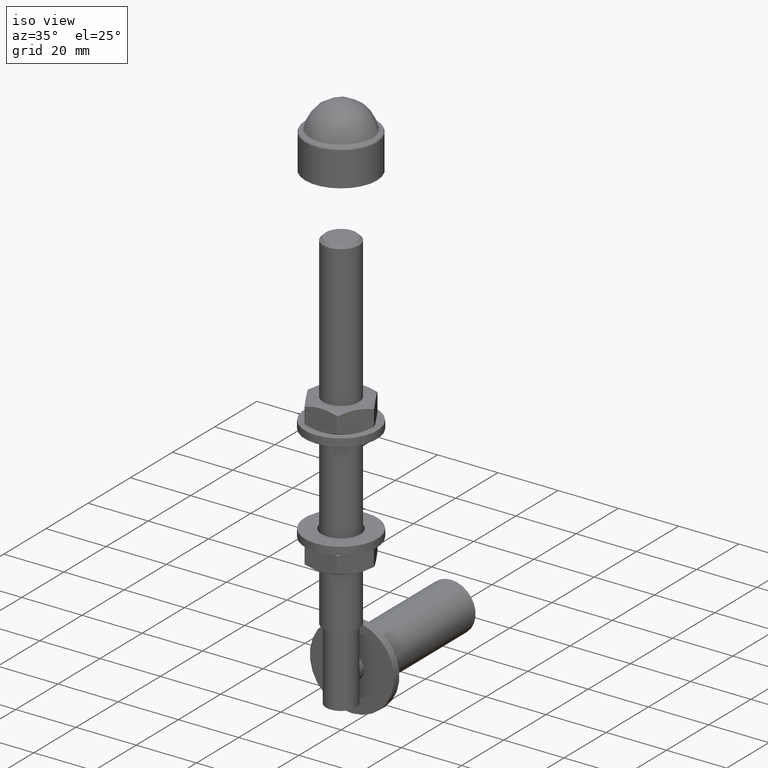
[diagram: clean part render]
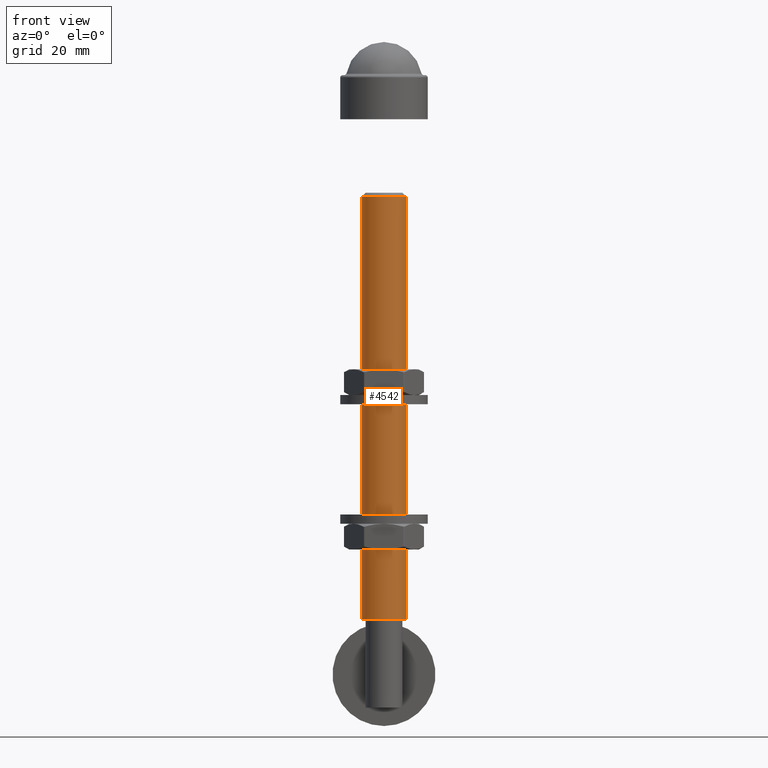
[diagram: tour spotlight — one face highlighted and labeled with its STEP entity id]
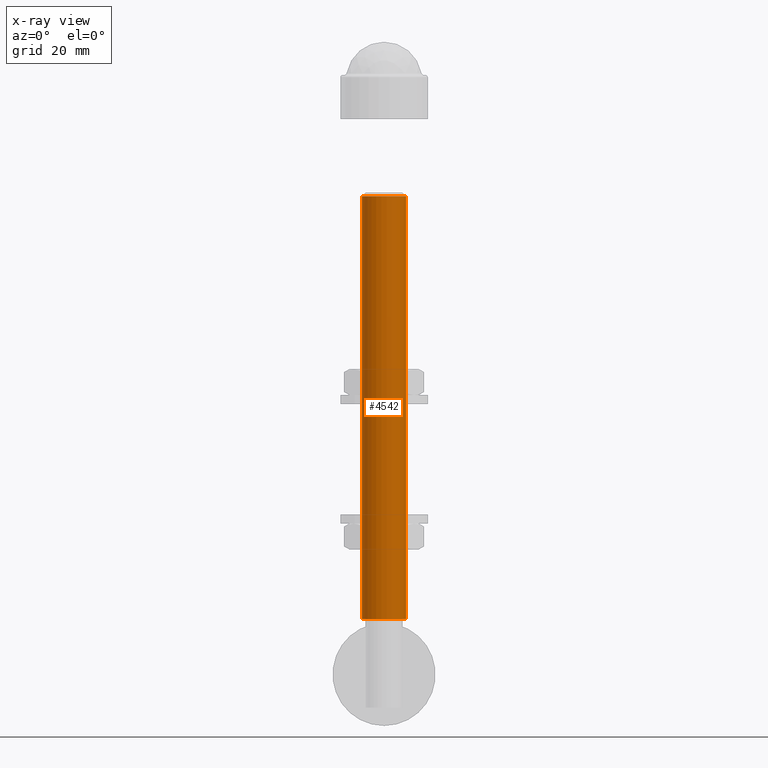
[diagram: x-ray of the same camera — body ghosted, this tour face saturated]
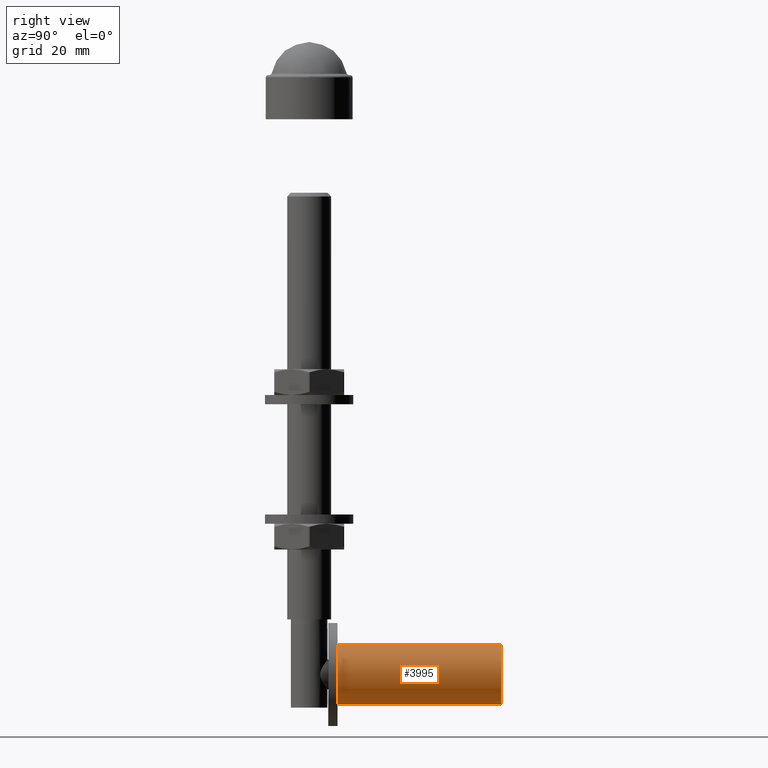
[diagram: tour spotlight — one face highlighted and labeled with its STEP entity id]
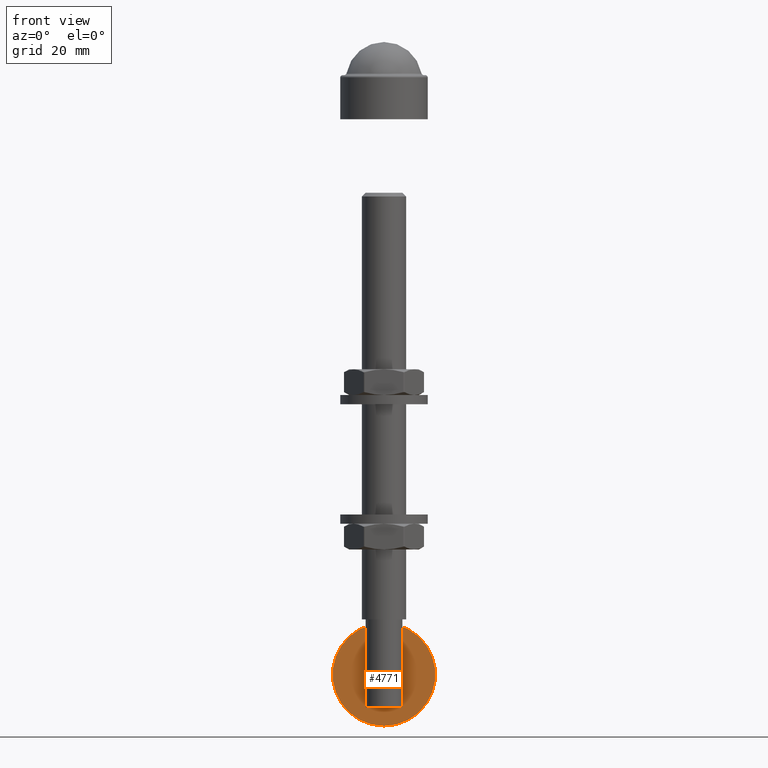
[diagram: tour spotlight — one face highlighted and labeled with its STEP entity id]
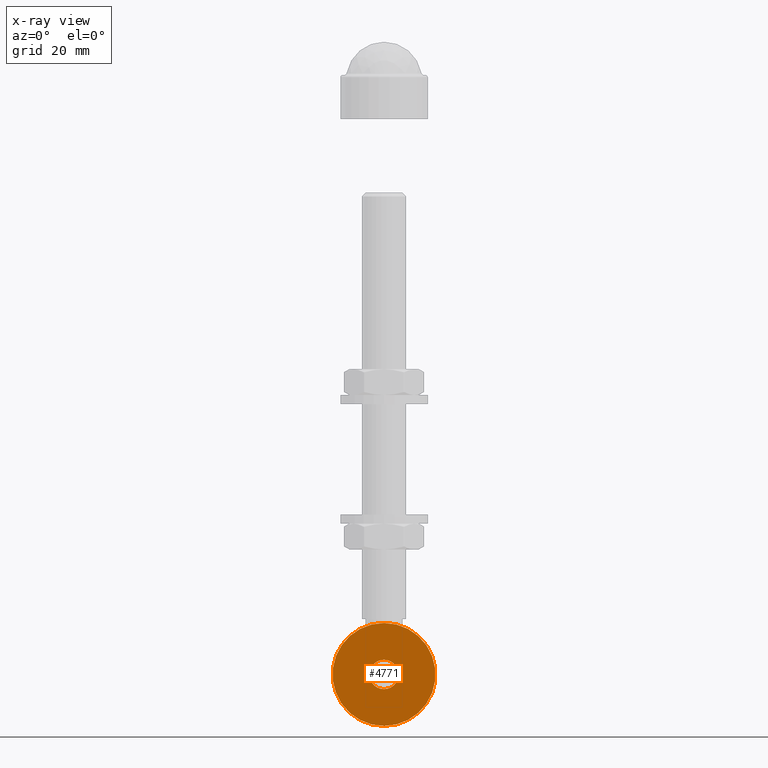
[diagram: x-ray of the same camera — body ghosted, this tour face saturated]
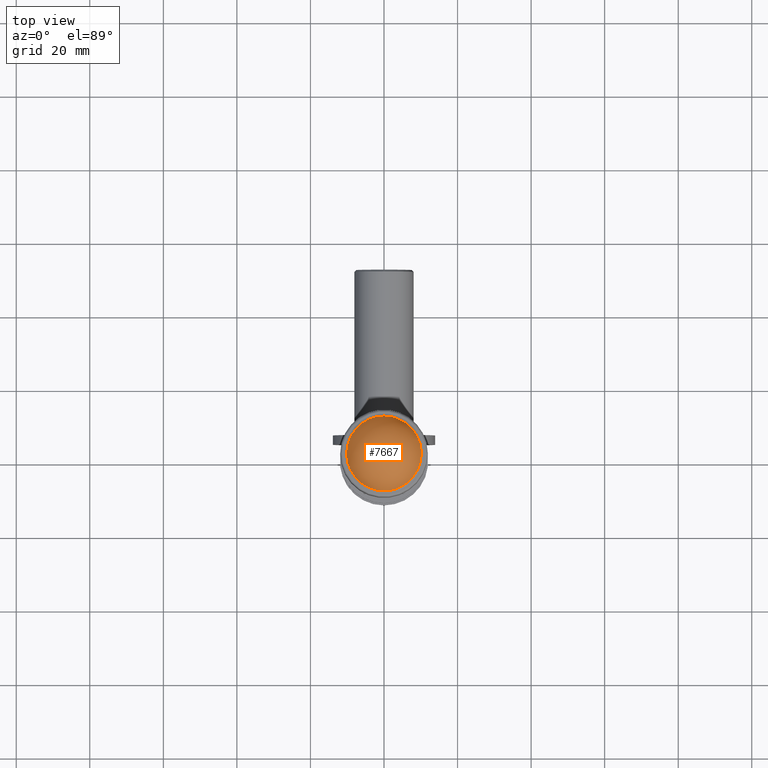
[diagram: tour spotlight — one face highlighted and labeled with its STEP entity id]
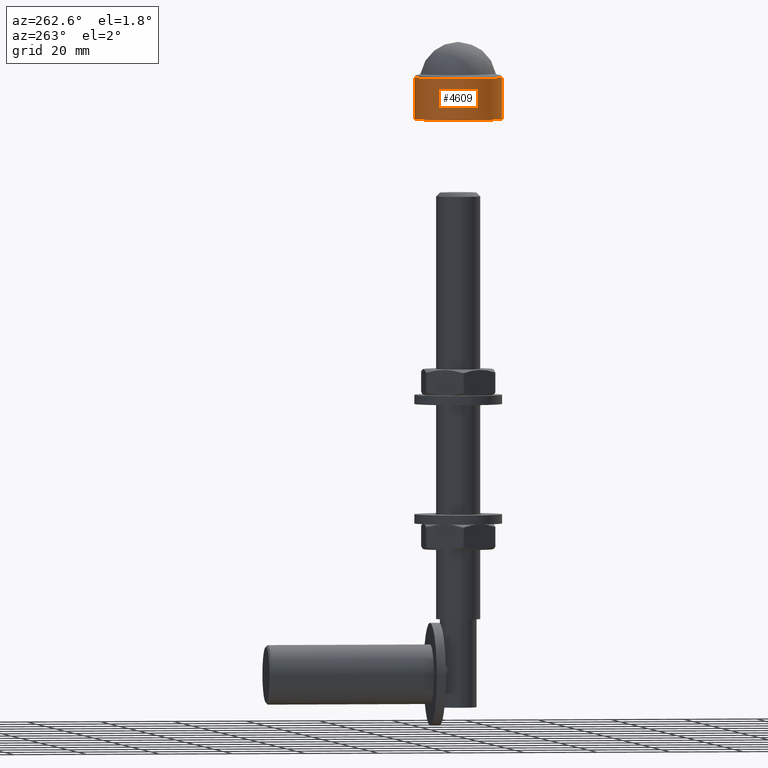
[diagram: tour spotlight — one face highlighted and labeled with its STEP entity id]
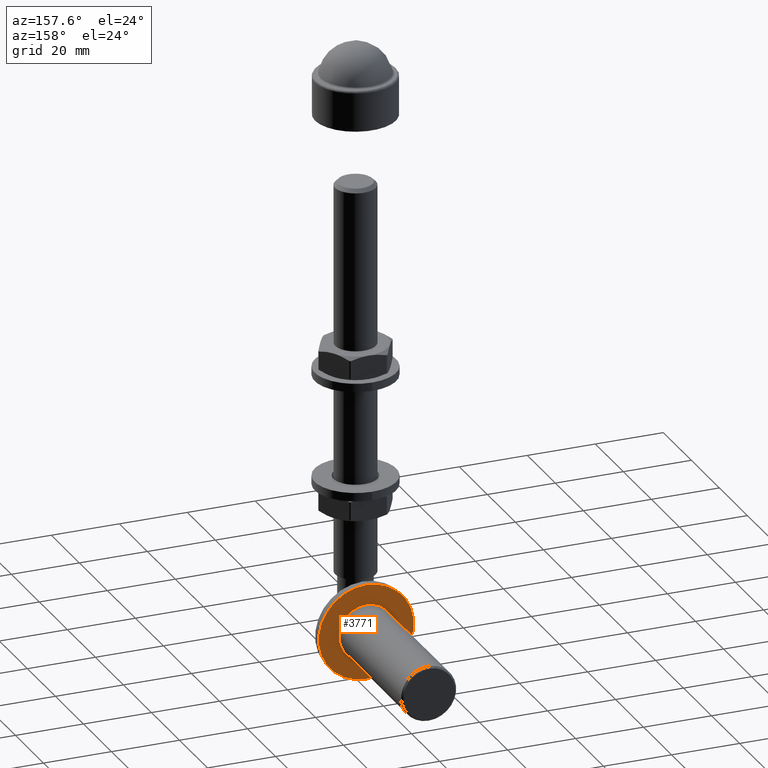
[diagram: tour spotlight — one face highlighted and labeled with its STEP entity id]
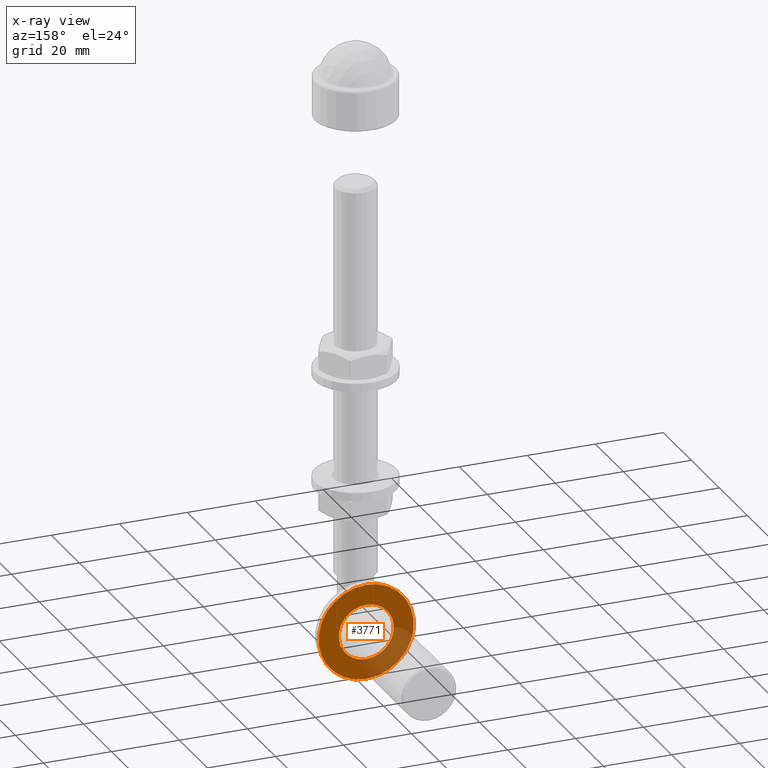
[diagram: x-ray of the same camera — body ghosted, this tour face saturated]
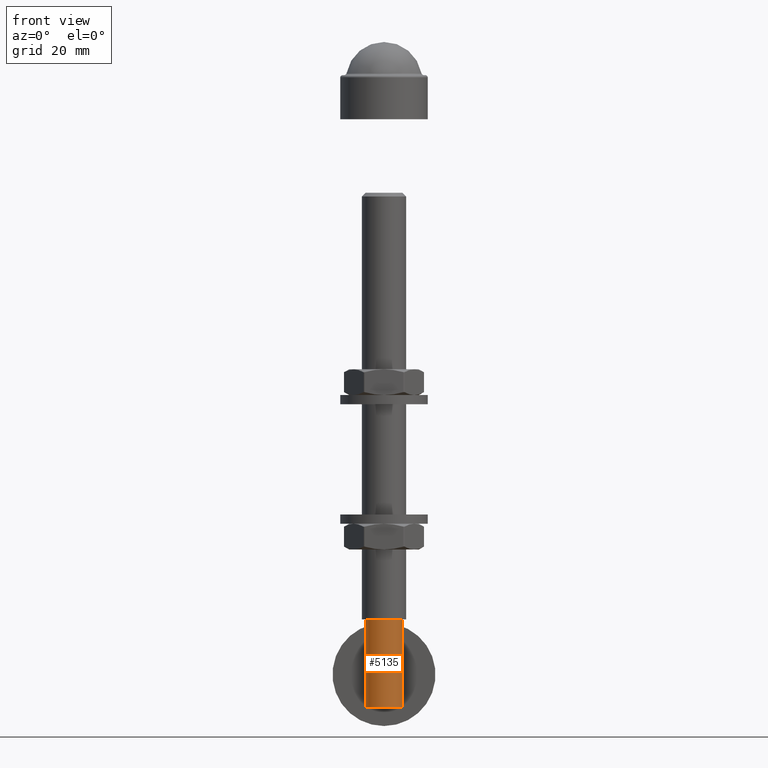
[diagram: tour spotlight — one face highlighted and labeled with its STEP entity id]
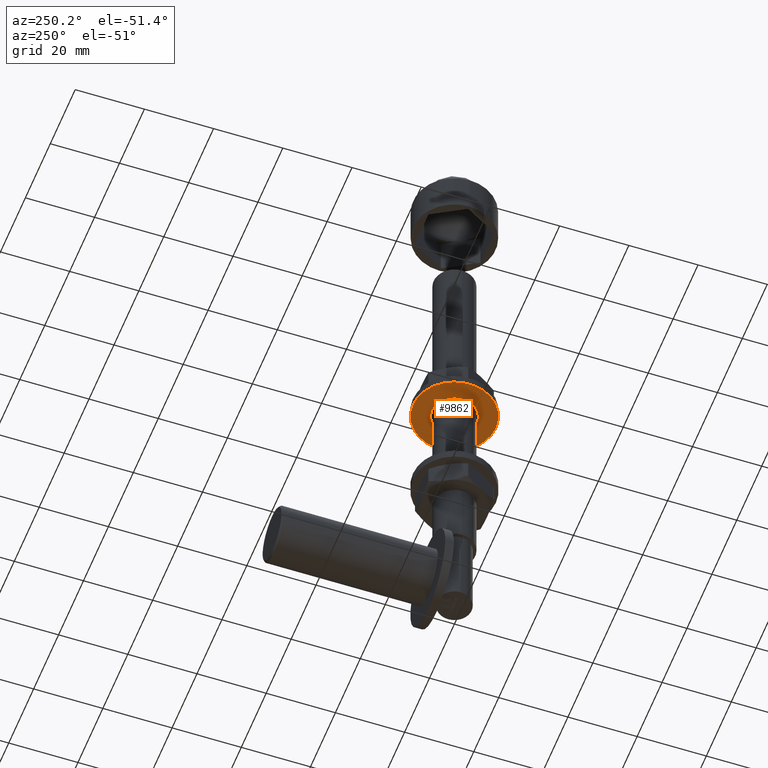
[diagram: tour spotlight — one face highlighted and labeled with its STEP entity id]
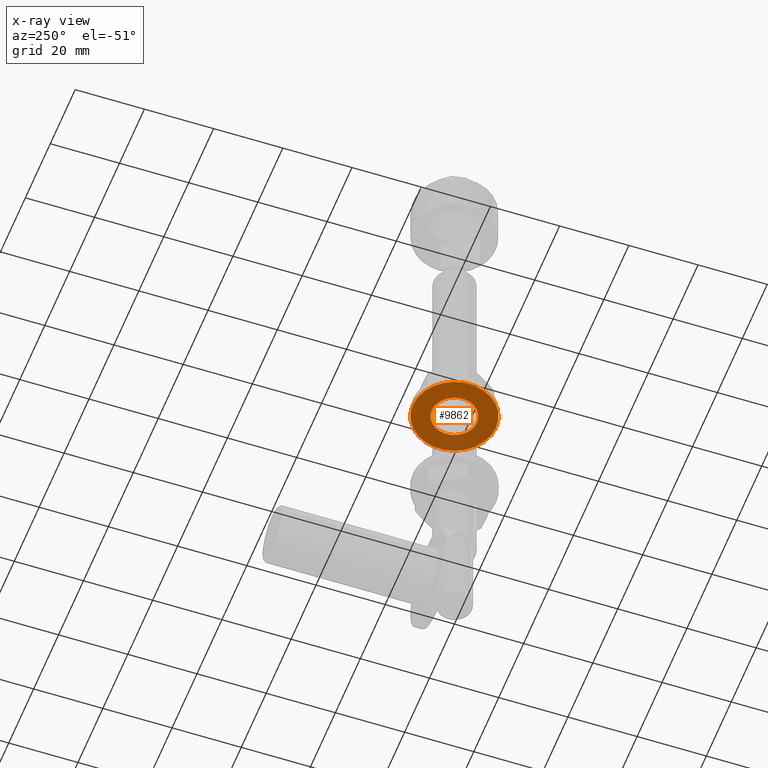
[diagram: x-ray of the same camera — body ghosted, this tour face saturated]
A machine part: a face-by-face anatomy tour. The part has 354 B-rep faces; the first image is the clean iso view, then the 8 largest visible faces are spotlighted one at a time (largest first), each with its STEP entity span.

Face 1 — front view, entity #4542. An x-ray twin of the same camera follows (body ghosted, this face saturated) — the face is partly hidden behind the body. In plain terms, the highlighted cylindrical surface (bore or boss wall) has radius 6 mm, axis along (-0, -0, -1).
Definition (entity closure, byte-faithful):
#1549 = AXIS2_PLACEMENT_3D ( 'NONE', #7938, #2211, #13761 ) ;
#1902 = EDGE_LOOP ( 'NONE', ( #14410 ) ) ;
#2211 = DIRECTION ( 'NONE',  ( -0.000000000000000000, -0.000000000000000000, -1.000000000000000000 ) ) ;
#2575 = EDGE_CURVE ( 'NONE', #7190, #7190, #9462, .T. ) ;
#2710 = DIRECTION ( 'NONE',  ( -1.000000000000000000, 0.000000000000000000, 0.000000000000000000 ) ) ;
#3904 = CARTESIAN_POINT ( 'NONE',  ( 0.000000000000000000, -1.836970198721030062E-14, -70.00000000000000000 ) ) ;
#4122 = AXIS2_PLACEMENT_3D ( 'NONE', #14816, #7911, #14862 ) ;
#4330 = FACE_OUTER_BOUND ( 'NONE', #9397, .T. ) ;
#4542 = ADVANCED_FACE ( 'NONE', ( #4330, #12133 ), #7788, .T. ) ;
#6218 = DIRECTION ( 'NONE',  ( -0.000000000000000000, -0.000000000000000000, -1.000000000000000000 ) ) ;
#7190 = VERTEX_POINT ( 'NONE', #13838 ) ;
#7788 = CYLINDRICAL_SURFACE ( 'NONE', #8827, 6.000000000000000000 ) ;
#7888 = ORIENTED_EDGE ( 'NONE', *, *, #12169, .T. ) ;
#7911 = DIRECTION ( 'NONE',  ( -0.000000000000000000, -0.000000000000000000, -1.000000000000000000 ) ) ;
#7938 = CARTESIAN_POINT ( 'NONE',  ( 0.000000000000000000, -1.836970198721030062E-14, -46.00000000000001421 ) ) ;
#8827 = AXIS2_PLACEMENT_3D ( 'NONE', #3904, #6218, #2710 ) ;
#9397 = EDGE_LOOP ( 'NONE', ( #7888 ) ) ;
#9462 = CIRCLE ( 'NONE', #1549, 6.000000000000000000 ) ;
#11513 = CARTESIAN_POINT ( 'NONE',  ( 6.000000000000000000, -1.836970198721030062E-14, 69.00000000000000000 ) ) ;
#11967 = CIRCLE ( 'NONE', #4122, 6.000000000000000000 ) ;
#12133 = FACE_OUTER_BOUND ( 'NONE', #1902, .T. ) ;
#12169 = EDGE_CURVE ( 'NONE', #14138, #14138, #11967, .T. ) ;
#13761 = DIRECTION ( 'NONE',  ( -1.000000000000000000, 0.000000000000000000, 0.000000000000000000 ) ) ;
#13838 = CARTESIAN_POINT ( 'NONE',  ( -6.000000000000000000, -1.836970198721030062E-14, -46.00000000000001421 ) ) ;
#14138 = VERTEX_POINT ( 'NONE', #11513 ) ;
#14410 = ORIENTED_EDGE ( 'NONE', *, *, #2575, .F. ) ;
#14816 = CARTESIAN_POINT ( 'NONE',  ( 0.000000000000000000, -1.836970198721030062E-14, 69.00000000000000000 ) ) ;
#14862 = DIRECTION ( 'NONE',  ( 1.000000000000000000, 0.000000000000000000, 0.000000000000000000 ) ) ;

Face 2 — right view, entity #3995. In plain terms, the highlighted cylindrical surface (bore or boss wall) has radius 8.1 mm, axis along (-0, -1, -0).
Definition (entity closure, byte-faithful):
#81 = ORIENTED_EDGE ( 'NONE', *, *, #8151, .F. ) ;
#1013 = EDGE_LOOP ( 'NONE', ( #13722 ) ) ;
#1239 = DIRECTION ( 'NONE',  ( 0.000000000000000000, 0.000000000000000000, 1.000000000000000000 ) ) ;
#1868 = AXIS2_PLACEMENT_3D ( 'NONE', #10578, #12774, #6006 ) ;
#2186 = DIRECTION ( 'NONE',  ( 0.000000000000000000, 0.000000000000000000, -1.000000000000000000 ) ) ;
#3320 = CARTESIAN_POINT ( 'NONE',  ( 0.000000000000000000, 7.699999999999983302, -69.10000000000002274 ) ) ;
#3995 = ADVANCED_FACE ( 'NONE', ( #5620, #13265 ), #4878, .T. ) ;
#4160 = AXIS2_PLACEMENT_3D ( 'NONE', #8248, #8364, #1239 ) ;
#4878 = CYLINDRICAL_SURFACE ( 'NONE', #14397, 8.100000000000010303 ) ;
#5620 = FACE_OUTER_BOUND ( 'NONE', #1013, .T. ) ;
#6006 = DIRECTION ( 'NONE',  ( 0.000000000000000000, 0.000000000000000000, -1.000000000000000000 ) ) ;
#6820 = DIRECTION ( 'NONE',  ( -0.000000000000000000, -1.000000000000000000, -0.000000000000000000 ) ) ;
#7443 = CIRCLE ( 'NONE', #4160, 8.100000000000003197 ) ;
#8151 = EDGE_CURVE ( 'NONE', #10482, #10482, #10749, .T. ) ;
#8248 = CARTESIAN_POINT ( 'NONE',  ( 0.000000000000000000, 52.19999999999998863, -61.00000000000001421 ) ) ;
#8364 = DIRECTION ( 'NONE',  ( -0.000000000000000000, -1.000000000000000000, -0.000000000000000000 ) ) ;
#10304 = VERTEX_POINT ( 'NONE', #11660 ) ;
#10482 = VERTEX_POINT ( 'NONE', #3320 ) ;
#10578 = CARTESIAN_POINT ( 'NONE',  ( 0.000000000000000000, 7.699999999999983302, -61.00000000000001421 ) ) ;
#10749 = CIRCLE ( 'NONE', #1868, 8.100000000000010303 ) ;
#11090 = EDGE_CURVE ( 'NONE', #10304, #10304, #7443, .T. ) ;
#11205 = EDGE_LOOP ( 'NONE', ( #81 ) ) ;
#11371 = CARTESIAN_POINT ( 'NONE',  ( 0.000000000000000000, 0.000000000000000000, -61.00000000000001421 ) ) ;
#11660 = CARTESIAN_POINT ( 'NONE',  ( 0.000000000000000000, 52.19999999999998863, -52.90000000000001279 ) ) ;
#12774 = DIRECTION ( 'NONE',  ( -0.000000000000000000, -1.000000000000000000, -0.000000000000000000 ) ) ;
#13265 = FACE_OUTER_BOUND ( 'NONE', #11205, .T. ) ;
#13722 = ORIENTED_EDGE ( 'NONE', *, *, #11090, .T. ) ;
#14397 = AXIS2_PLACEMENT_3D ( 'NONE', #11371, #6820, #2186 ) ;

Face 3 — front view, entity #4771. An x-ray twin of the same camera follows (body ghosted, this face saturated) — the face is partly hidden behind the body. In plain terms, the highlighted planar face has unit normal (0, -1, 0).
Definition (entity closure, byte-faithful):
#40 = CARTESIAN_POINT ( 'NONE',  ( 0.000000000000000000, 5.199999999999980638, -61.00000000000001421 ) ) ;
#68 = DIRECTION ( 'NONE',  ( -0.000000000000000000, -1.000000000000000000, -0.000000000000000000 ) ) ;
#1843 = EDGE_LOOP ( 'NONE', ( #9197 ) ) ;
#1933 = FACE_OUTER_BOUND ( 'NONE', #1843, .T. ) ;
#3627 = DIRECTION ( 'NONE',  ( -0.000000000000000000, -1.000000000000000000, -0.000000000000000000 ) ) ;
#3649 = EDGE_CURVE ( 'NONE', #12654, #12654, #6752, .T. ) ;
#3902 = PLANE ( 'NONE',  #6268 ) ;
#4771 = ADVANCED_FACE ( 'NONE', ( #1933, #13996 ), #3902, .T. ) ;
#4936 = DIRECTION ( 'NONE',  ( 0.000000000000000000, 0.000000000000000000, -1.000000000000000000 ) ) ;
#4992 = AXIS2_PLACEMENT_3D ( 'NONE', #11741, #68, #9515 ) ;
#6019 = CARTESIAN_POINT ( 'NONE',  ( 0.000000000000000000, 5.199999999999981526, -75.00000000000001421 ) ) ;
#6268 = AXIS2_PLACEMENT_3D ( 'NONE', #6019, #13028, #4936 ) ;
#6752 = CIRCLE ( 'NONE', #4992, 13.99999999999999822 ) ;
#9197 = ORIENTED_EDGE ( 'NONE', *, *, #3649, .T. ) ;
#9218 = CIRCLE ( 'NONE', #14085, 4.000000000000003553 ) ;
#9515 = DIRECTION ( 'NONE',  ( 0.000000000000000000, 0.000000000000000000, -1.000000000000000000 ) ) ;
#10825 = VERTEX_POINT ( 'NONE', #12986 ) ;
#11470 = CARTESIAN_POINT ( 'NONE',  ( 0.000000000000000000, 5.199999999999982414, -75.00000000000001421 ) ) ;
#11741 = CARTESIAN_POINT ( 'NONE',  ( 0.000000000000000000, 5.199999999999982414, -61.00000000000001421 ) ) ;
#11766 = DIRECTION ( 'NONE',  ( 0.000000000000000000, 0.000000000000000000, -1.000000000000000000 ) ) ;
#12654 = VERTEX_POINT ( 'NONE', #11470 ) ;
#12986 = CARTESIAN_POINT ( 'NONE',  ( 0.000000000000000000, 5.199999999999980638, -65.00000000000001421 ) ) ;
#13028 = DIRECTION ( 'NONE',  ( 0.000000000000000000, -1.000000000000000000, -0.000000000000000000 ) ) ;
#13063 = ORIENTED_EDGE ( 'NONE', *, *, #13076, .F. ) ;
#13076 = EDGE_CURVE ( 'NONE', #10825, #10825, #9218, .T. ) ;
#13996 = FACE_BOUND ( 'NONE', #14945, .T. ) ;
#14085 = AXIS2_PLACEMENT_3D ( 'NONE', #40, #3627, #11766 ) ;
#14945 = EDGE_LOOP ( 'NONE', ( #13063 ) ) ;

Face 4 — top view, entity #7667. In plain terms, the highlighted spherical surface has radius 10.3368 mm.
Definition (entity closure, byte-faithful):
#662 = CARTESIAN_POINT ( 'NONE',  ( -2.731067483295574030E-24, 12.57081734096772152, 0.000000000000000000 ) ) ;
#954 = FACE_OUTER_BOUND ( 'NONE', #13425, .T. ) ;
#4149 = ORIENTED_EDGE ( 'NONE', *, *, #8446, .T. ) ;
#4508 = DIRECTION ( 'NONE',  ( -1.000000000000000000, 0.000000000000000000, 0.000000000000000000 ) ) ;
#5186 = VERTEX_POINT ( 'NONE', #15154 ) ;
#6296 = DIRECTION ( 'NONE',  ( -1.444893032729974187E-24, 1.000000000000000000, -0.000000000000000000 ) ) ;
#6660 = CARTESIAN_POINT ( 'NONE',  ( 2.524354896707237777E-26, 10.66319444444444997, 0.000000000000000000 ) ) ;
#7667 = ADVANCED_FACE ( 'NONE', ( #954 ), #13005, .T. ) ;
#8446 = EDGE_CURVE ( 'NONE', #5186, #5186, #10404, .T. ) ;
#8858 = DIRECTION ( 'NONE',  ( 1.000000000000000000, 0.000000000000000000, 0.000000000000000000 ) ) ;
#10312 = DIRECTION ( 'NONE',  ( 0.000000000000000000, 0.000000000000000000, 1.000000000000000000 ) ) ;
#10404 = CIRCLE ( 'NONE', #14922, 10.15925804269309474 ) ;
#13005 = SPHERICAL_SURFACE ( 'NONE', #14226, 10.33680555555555358 ) ;
#13425 = EDGE_LOOP ( 'NONE', ( #4149 ) ) ;
#14226 = AXIS2_PLACEMENT_3D ( 'NONE', #6660, #10312, #4508 ) ;
#14922 = AXIS2_PLACEMENT_3D ( 'NONE', #662, #6296, #8858 ) ;
#15154 = CARTESIAN_POINT ( 'NONE',  ( 10.15925804269309474, 12.57081734096772152, 0.000000000000000000 ) ) ;

Face 5 — auxiliary view, entity #4609. In plain terms, the highlighted cylindrical surface (bore or boss wall) has radius 11.9 mm, axis along (-0, -0, 1).
Definition (entity closure, byte-faithful):
#1459 = EDGE_CURVE ( 'NONE', #10321, #10321, #12729, .T. ) ;
#2837 = CIRCLE ( 'NONE', #3070, 11.90000000000000036 ) ;
#3070 = AXIS2_PLACEMENT_3D ( 'NONE', #14161, #7161, #8404 ) ;
#3361 = CARTESIAN_POINT ( 'NONE',  ( -11.90000000000000036, -1.719422708948669389E-23, 0.000000000000000000 ) ) ;
#3370 = ORIENTED_EDGE ( 'NONE', *, *, #1459, .T. ) ;
#3407 = FACE_OUTER_BOUND ( 'NONE', #3998, .T. ) ;
#3998 = EDGE_LOOP ( 'NONE', ( #10662 ) ) ;
#4132 = DIRECTION ( 'NONE',  ( 1.000000000000000000, 0.000000000000000000, 0.000000000000000000 ) ) ;
#4609 = ADVANCED_FACE ( 'NONE', ( #9249, #3407 ), #10513, .T. ) ;
#5525 = EDGE_LOOP ( 'NONE', ( #3370 ) ) ;
#7161 = DIRECTION ( 'NONE',  ( -1.444893032729974187E-24, 1.000000000000000000, -0.000000000000000000 ) ) ;
#8108 = CARTESIAN_POINT ( 'NONE',  ( 11.90000000000000036, 11.30000000000000071, 0.000000000000000000 ) ) ;
#8404 = DIRECTION ( 'NONE',  ( -1.000000000000000000, -1.444893032729974187E-24, 0.000000000000000000 ) ) ;
#8732 = DIRECTION ( 'NONE',  ( 1.444893032729974187E-24, -1.000000000000000000, 0.000000000000000000 ) ) ;
#9249 = FACE_OUTER_BOUND ( 'NONE', #5525, .T. ) ;
#9830 = CARTESIAN_POINT ( 'NONE',  ( -1.632729126984870402E-23, 11.30000000000000071, 0.000000000000000000 ) ) ;
#9873 = AXIS2_PLACEMENT_3D ( 'NONE', #10033, #14627, #11240 ) ;
#10033 = CARTESIAN_POINT ( 'NONE',  ( -3.034275368732945463E-23, 21.00000000000000000, 0.000000000000000000 ) ) ;
#10132 = VERTEX_POINT ( 'NONE', #3361 ) ;
#10226 = AXIS2_PLACEMENT_3D ( 'NONE', #9830, #8732, #4132 ) ;
#10315 = EDGE_CURVE ( 'NONE', #10132, #10132, #2837, .T. ) ;
#10321 = VERTEX_POINT ( 'NONE', #8108 ) ;
#10513 = CYLINDRICAL_SURFACE ( 'NONE', #9873, 11.90000000000000036 ) ;
#10662 = ORIENTED_EDGE ( 'NONE', *, *, #10315, .T. ) ;
#11240 = DIRECTION ( 'NONE',  ( -1.000000000000000000, 0.000000000000000000, 0.000000000000000000 ) ) ;
#12729 = CIRCLE ( 'NONE', #10226, 11.90000000000000036 ) ;
#14161 = CARTESIAN_POINT ( 'NONE',  ( 5.739718509874450723E-39, 0.000000000000000000, 0.000000000000000000 ) ) ;
#14627 = DIRECTION ( 'NONE',  ( -1.444893032729974187E-24, 1.000000000000000000, -0.000000000000000000 ) ) ;

Face 6 — auxiliary view, entity #3771. An x-ray twin of the same camera follows (body ghosted, this face saturated) — the face is partly hidden behind the body. In plain terms, the highlighted planar face has unit normal (0, 1, 0).
Definition (entity closure, byte-faithful):
#792 = VERTEX_POINT ( 'NONE', #3466 ) ;
#1176 = DIRECTION ( 'NONE',  ( 0.000000000000000000, 0.000000000000000000, -1.000000000000000000 ) ) ;
#1189 = ORIENTED_EDGE ( 'NONE', *, *, #8151, .T. ) ;
#1868 = AXIS2_PLACEMENT_3D ( 'NONE', #10578, #12774, #6006 ) ;
#2311 = DIRECTION ( 'NONE',  ( -0.000000000000000000, -1.000000000000000000, -0.000000000000000000 ) ) ;
#3247 = FACE_BOUND ( 'NONE', #12547, .T. ) ;
#3320 = CARTESIAN_POINT ( 'NONE',  ( 0.000000000000000000, 7.699999999999983302, -69.10000000000002274 ) ) ;
#3466 = CARTESIAN_POINT ( 'NONE',  ( 0.000000000000000000, 7.699999999999983302, -75.00000000000001421 ) ) ;
#3771 = ADVANCED_FACE ( 'NONE', ( #3247, #8918 ), #10740, .T. ) ;
#3818 = CARTESIAN_POINT ( 'NONE',  ( 0.000000000000000000, 7.699999999999983302, -69.10000000000002274 ) ) ;
#4034 = AXIS2_PLACEMENT_3D ( 'NONE', #9312, #2311, #1176 ) ;
#5231 = ORIENTED_EDGE ( 'NONE', *, *, #6906, .F. ) ;
#6006 = DIRECTION ( 'NONE',  ( 0.000000000000000000, 0.000000000000000000, -1.000000000000000000 ) ) ;
#6906 = EDGE_CURVE ( 'NONE', #792, #792, #13766, .T. ) ;
#8151 = EDGE_CURVE ( 'NONE', #10482, #10482, #10749, .T. ) ;
#8918 = FACE_OUTER_BOUND ( 'NONE', #12574, .T. ) ;
#9312 = CARTESIAN_POINT ( 'NONE',  ( 0.000000000000000000, 7.699999999999983302, -61.00000000000001421 ) ) ;
#10482 = VERTEX_POINT ( 'NONE', #3320 ) ;
#10578 = CARTESIAN_POINT ( 'NONE',  ( 0.000000000000000000, 7.699999999999983302, -61.00000000000001421 ) ) ;
#10740 = PLANE ( 'NONE',  #13398 ) ;
#10749 = CIRCLE ( 'NONE', #1868, 8.100000000000010303 ) ;
#10821 = DIRECTION ( 'NONE',  ( 0.000000000000000000, -0.000000000000000000, 1.000000000000000000 ) ) ;
#12547 = EDGE_LOOP ( 'NONE', ( #1189 ) ) ;
#12574 = EDGE_LOOP ( 'NONE', ( #5231 ) ) ;
#12774 = DIRECTION ( 'NONE',  ( -0.000000000000000000, -1.000000000000000000, -0.000000000000000000 ) ) ;
#13398 = AXIS2_PLACEMENT_3D ( 'NONE', #3818, #14243, #10821 ) ;
#13766 = CIRCLE ( 'NONE', #4034, 13.99999999999999822 ) ;
#14243 = DIRECTION ( 'NONE',  ( 0.000000000000000000, 1.000000000000000000, 0.000000000000000000 ) ) ;

Face 7 — front view, entity #5135. In plain terms, the highlighted cylindrical surface (bore or boss wall) has radius 5 mm, axis along (-0, -0, -1).
Definition (entity closure, byte-faithful):
#46 = CARTESIAN_POINT ( 'NONE',  ( -1.087361570874526784, 4.887831675486082439, -64.85902273459967660 ) ) ;
#94 = CARTESIAN_POINT ( 'NONE',  ( 1.820957128837912498, 4.663783085230689629, -57.42854549081290827 ) ) ;
#152 = CARTESIAN_POINT ( 'NONE',  ( -1.833377537662952861, 4.658763893334805672, -64.56489871654153490 ) ) ;
#190 = CARTESIAN_POINT ( 'NONE',  ( -3.191881859894237117, 3.852994989080987587, -58.57659654983018527 ) ) ;
#383 = CARTESIAN_POINT ( 'NONE',  ( 1.480803425727861056, 4.777429984658234652, -64.71819601079039330 ) ) ;
#812 = FACE_BOUND ( 'NONE', #825, .T. ) ;
#825 = EDGE_LOOP ( 'NONE', ( #12266 ) ) ;
#966 = CARTESIAN_POINT ( 'NONE',  ( -4.878909776184769953E-16, 4.999999999999981348, -65.00000000000002842 ) ) ;
#1157 = CARTESIAN_POINT ( 'NONE',  ( 3.017066726457476200, 3.992826949316448992, -58.36194967389334209 ) ) ;
#1216 = CARTESIAN_POINT ( 'NONE',  ( -3.992021358842381407, 3.010706607170612781, -61.28789719932864699 ) ) ;
#1259 = CARTESIAN_POINT ( 'NONE',  ( -3.776444225367822316, 3.280274509822600049, -62.34267958521836306 ) ) ;
#1309 = CARTESIAN_POINT ( 'NONE',  ( -0.2970494910859153292, 4.993069614654568333, -57.00865615366303274 ) ) ;
#1365 = CARTESIAN_POINT ( 'NONE',  ( -3.965773646679058295, 3.045187097233188034, -60.46000317952519509 ) ) ;
#1455 = CARTESIAN_POINT ( 'NONE',  ( 3.966074479458064239, 3.044794308477223321, -61.53777180287072213 ) ) ;
#1557 = CARTESIAN_POINT ( 'NONE',  ( 1.353597233068170258, 4.815126225674180915, -64.76644374207990040 ) ) ;
#1609 = CARTESIAN_POINT ( 'NONE',  ( 3.463706379511250599, 3.610638135659147707, -63.01596383844133697 ) ) ;
#1630 = DIRECTION ( 'NONE',  ( -1.000000000000000000, 0.000000000000000000, 0.000000000000000000 ) ) ;
#1747 = AXIS2_PLACEMENT_3D ( 'NONE', #4415, #6619, #13695 ) ;
#2341 = CARTESIAN_POINT ( 'NONE',  ( 3.454395162862861302, 3.619649294036346721, -58.96794216171547731 ) ) ;
#2540 = CARTESIAN_POINT ( 'NONE',  ( -2.062618871635509610, 4.560863146057613449, -64.43672320707985079 ) ) ;
#2585 = CARTESIAN_POINT ( 'NONE',  ( 3.945059660310361149, 3.072205090824089879, -61.67445645500640694 ) ) ;
#2631 = CARTESIAN_POINT ( 'NONE',  ( 2.488720138866361342, 4.342943608455331450, -64.14176245884117122 ) ) ;
#2865 = EDGE_CURVE ( 'NONE', #9568, #9568, #3371, .T. ) ;
#3179 = VERTEX_POINT ( 'NONE', #11747 ) ;
#3203 = CIRCLE ( 'NONE', #3623, 5.000000000000000000 ) ;
#3337 = CARTESIAN_POINT ( 'NONE',  ( -0.5533891418995975364, 4.976646876294061883, -64.97091577719798750 ) ) ;
#3371 = B_SPLINE_CURVE_WITH_KNOTS ( 'NONE', 3,
 ( #966, #10340, #3337, #46, #7120, #152, #2540, #14266, #8332, #3633, #13062, #10717, #9489, #1259, #4767, #14212, #5886, #1216, #14052, #10564, #12906, #1365, #10610, #4807, #3525, #7204, #3681, #190, #7062, #8397, #12961, #5989, #3580, #14152, #11828, #9451, #9539, #1309, #10660, #3728, #8223, #4865, #6043, #94, #6083, #7263, #8185, #1157, #9346, #2341, #12849, #11675, #10516, #4724, #5934, #14096, #8275, #14497, #13266, #9680, #14449, #1455, #2585, #6142, #7347, #10759, #1609, #12118, #10844, #11918, #2631, #6238, #14404, #383, #1557, #8685, #6391, #14606, #5434, #10058 ),
 .UNSPECIFIED., .T., .F.,
 ( 4, 2, 2, 2, 2, 2, 2, 2, 2, 2, 2, 2, 2, 2, 2, 2, 2, 2, 2, 2, 2, 2, 2, 2, 2, 2, 2, 2, 2, 2, 2, 2, 2, 2, 2, 2, 2, 2, 2, 4 ),
 ( 0.000000000000000000, 0.0008265088811608763564, 0.001653017762321752713, 0.002479526643482628852, 0.003306035524643505426, 0.004132544405804381565, 0.004959053286965257705, 0.005785562168126133845, 0.006198816608706562807, 0.006612071049286991770, 0.007025325489867419865, 0.007438579930447848827, 0.008265088811608724967, 0.009091597692769600239, 0.009918106573930477246, 0.01074461545509135425, 0.01157112433625222953, 0.01239763321741310653, 0.01281088765799354157, 0.01322414209857397660, 0.01405065097973485014, 0.01487715986089572541, 0.01570366874205659721, 0.01653017762321747075, 0.01735668650437834429, 0.01818319538553921783, 0.01859644982611965286, 0.01900970426670008789, 0.01942295870728052293, 0.01983621314786095796, 0.02024946758844139300, 0.02066272202902182803, 0.02148923091018270157, 0.02231573979134357510, 0.02314224867250444864, 0.02396875755366532218, 0.02479526643482619572, 0.02520852087540664116, 0.02562177531598708313, 0.02644828419714796014 ),
 .UNSPECIFIED. ) ;
#3525 = CARTESIAN_POINT ( 'NONE',  ( -3.784648076143621420, 3.270832994395396209, -59.67995163216267684 ) ) ;
#3552 = EDGE_LOOP ( 'NONE', ( #5779 ) ) ;
#3580 = CARTESIAN_POINT ( 'NONE',  ( -1.853345313763039348, 4.650928307674279338, -57.44532283909637016 ) ) ;
#3623 = AXIS2_PLACEMENT_3D ( 'NONE', #14629, #6314, #1630 ) ;
#3633 = CARTESIAN_POINT ( 'NONE',  ( -3.022601391075808497, 3.988575246927203111, -63.63160538378734543 ) ) ;
#3681 = CARTESIAN_POINT ( 'NONE',  ( -3.465755827058813576, 3.608630867879534687, -58.98765543779779819 ) ) ;
#3728 = CARTESIAN_POINT ( 'NONE',  ( 0.2541505363871487400, 5.001144851135917335, -56.99856892841211931 ) ) ;
#4221 = DIRECTION ( 'NONE',  ( -1.000000000000000000, 0.000000000000000000, 0.000000000000000000 ) ) ;
#4415 = CARTESIAN_POINT ( 'NONE',  ( 0.000000000000000000, -1.836970198721030062E-14, -46.00000000000000711 ) ) ;
#4673 = CYLINDRICAL_SURFACE ( 'NONE', #12219, 5.000000000000000000 ) ;
#4724 = CARTESIAN_POINT ( 'NONE',  ( 3.848846284474759738, 3.192205546072344191, -59.90297772830146528 ) ) ;
#4767 = CARTESIAN_POINT ( 'NONE',  ( -3.857835620733243598, 3.181989532056634040, -62.09041187669321715 ) ) ;
#4807 = CARTESIAN_POINT ( 'NONE',  ( -3.863110423718085773, 3.175535089449109005, -59.92825223335578499 ) ) ;
#4865 = CARTESIAN_POINT ( 'NONE',  ( 1.071278671447113862, 4.891437361441509424, -57.13641675096490502 ) ) ;
#5135 = ADVANCED_FACE ( 'NONE', ( #812, #5412, #10681 ), #4673, .T. ) ;
#5412 = FACE_OUTER_BOUND ( 'NONE', #3552, .T. ) ;
#5434 = CARTESIAN_POINT ( 'NONE',  ( 0.2801250237691153000, 4.999999999999981348, -65.00000000000001421 ) ) ;
#5779 = ORIENTED_EDGE ( 'NONE', *, *, #11591, .T. ) ;
#5886 = CARTESIAN_POINT ( 'NONE',  ( -3.962611752038273316, 3.049310890434545396, -61.56287425722202755 ) ) ;
#5934 = CARTESIAN_POINT ( 'NONE',  ( 3.883711217025733742, 3.149417989363422876, -60.03304319561195257 ) ) ;
#5989 = CARTESIAN_POINT ( 'NONE',  ( -2.080853731078396329, 4.552426729890355794, -57.57448638054423640 ) ) ;
#6043 = CARTESIAN_POINT ( 'NONE',  ( 1.330540095233774034, 4.826636570752432576, -57.21835548587210951 ) ) ;
#6083 = CARTESIAN_POINT ( 'NONE',  ( 2.048166462903649787, 4.567432760022365201, -57.55457284261321860 ) ) ;
#6142 = CARTESIAN_POINT ( 'NONE',  ( 3.862961011278549073, 3.175734812498724580, -62.07288450346401731 ) ) ;
#6238 = CARTESIAN_POINT ( 'NONE',  ( 2.071721836711482467, 4.556627672645069183, -64.43108844372679300 ) ) ;
#6314 = DIRECTION ( 'NONE',  ( -0.000000000000000000, -0.000000000000000000, -1.000000000000000000 ) ) ;
#6391 = CARTESIAN_POINT ( 'NONE',  ( 0.9644912504006240006, 4.907975660079618052, -64.88439500920485159 ) ) ;
#6619 = DIRECTION ( 'NONE',  ( -0.000000000000000000, -0.000000000000000000, -1.000000000000000000 ) ) ;
#7062 = CARTESIAN_POINT ( 'NONE',  ( -3.035691578065142338, 3.978684129168576611, -58.38331716106615943 ) ) ;
#7120 = CARTESIAN_POINT ( 'NONE',  ( -1.348663838197515341, 4.821458291947108066, -64.77503402717708525 ) ) ;
#7204 = CARTESIAN_POINT ( 'NONE',  ( -3.584532075349549096, 3.488988297239390857, -59.20633934244021646 ) ) ;
#7263 = CARTESIAN_POINT ( 'NONE',  ( 2.471953319980062069, 4.352685913424982900, -57.84478195040956905 ) ) ;
#7347 = CARTESIAN_POINT ( 'NONE',  ( 3.784281875617051316, 3.271245912368231146, -62.32100477587347598 ) ) ;
#7475 = DIRECTION ( 'NONE',  ( -0.000000000000000000, -0.000000000000000000, -1.000000000000000000 ) ) ;
#8185 = CARTESIAN_POINT ( 'NONE',  ( 2.666604414451651639, 4.234923798123348959, -58.00814070320894444 ) ) ;
#8223 = CARTESIAN_POINT ( 'NONE',  ( 0.5350200239718552186, 4.978709775308510999, -57.02650442455621516 ) ) ;
#8275 = CARTESIAN_POINT ( 'NONE',  ( 3.961768982765095259, 3.050407850649883290, -60.43134981000793005 ) ) ;
#8332 = CARTESIAN_POINT ( 'NONE',  ( -2.674496834983357996, 4.229883964058329227, -63.98471652673681831 ) ) ;
#8397 = CARTESIAN_POINT ( 'NONE',  ( -2.686395811168746928, 4.222396038100708182, -58.02582280580971741 ) ) ;
#8664 = VERTEX_POINT ( 'NONE', #10372 ) ;
#8685 = CARTESIAN_POINT ( 'NONE',  ( 1.095867937108745638, 4.880239697285586153, -64.84933726712010582 ) ) ;
#9346 = CARTESIAN_POINT ( 'NONE',  ( 3.175457681581931091, 3.866674988347284625, -58.55488783246531881 ) ) ;
#9451 = CARTESIAN_POINT ( 'NONE',  ( -0.7094843923667123464, 4.951277336645982352, -57.06103344216466411 ) ) ;
#9489 = CARTESIAN_POINT ( 'NONE',  ( -3.576624768815951150, 3.497068359383056713, -62.80888770214415473 ) ) ;
#9539 = CARTESIAN_POINT ( 'NONE',  ( -0.5715625573450801022, 4.969134614797857452, -57.03863907944661804 ) ) ;
#9568 = VERTEX_POINT ( 'NONE', #10311 ) ;
#9574 = EDGE_LOOP ( 'NONE', ( #13834 ) ) ;
#9680 = CARTESIAN_POINT ( 'NONE',  ( 4.000465286172457446, 2.999379629320208185, -61.12562019411384284 ) ) ;
#10022 = CARTESIAN_POINT ( 'NONE',  ( 0.000000000000000000, -1.836970198721030062E-14, -70.00000000000000000 ) ) ;
#10058 = CARTESIAN_POINT ( 'NONE',  ( -4.878909776184769953E-16, 4.999999999999981348, -65.00000000000002842 ) ) ;
#10311 = CARTESIAN_POINT ( 'NONE',  ( 0.000000000000000000, 4.999999999999982236, -65.00000000000001421 ) ) ;
#10340 = CARTESIAN_POINT ( 'NONE',  ( -0.2801250237691153000, 4.999999999999981348, -65.00000000000002842 ) ) ;
#10372 = CARTESIAN_POINT ( 'NONE',  ( -5.000000000000000000, -1.836970198721030062E-14, -46.00000000000000711 ) ) ;
#10516 = CARTESIAN_POINT ( 'NONE',  ( 3.769040374828697804, 3.286050611722428183, -59.65411358613406634 ) ) ;
#10564 = CARTESIAN_POINT ( 'NONE',  ( -4.000323634996629352, 2.999568490267300103, -60.87153896472565862 ) ) ;
#10610 = CARTESIAN_POINT ( 'NONE',  ( -3.944611327128475953, 3.072776072288726290, -60.32316336300679183 ) ) ;
#10660 = CARTESIAN_POINT ( 'NONE',  ( -0.1594821741996747255, 4.999357560268090417, -57.00080305372863876 ) ) ;
#10681 = FACE_OUTER_BOUND ( 'NONE', #9574, .T. ) ;
#10717 = CARTESIAN_POINT ( 'NONE',  ( -3.457629301634345342, 3.616491245582047487, -63.02638681813395038 ) ) ;
#10759 = CARTESIAN_POINT ( 'NONE',  ( 3.584473990407078148, 3.489037882483469133, -62.79370821041198525 ) ) ;
#10844 = CARTESIAN_POINT ( 'NONE',  ( 3.033097011011593125, 3.980700772004690524, -63.61975473990991503 ) ) ;
#11591 = EDGE_CURVE ( 'NONE', #8664, #8664, #14389, .T. ) ;
#11675 = CARTESIAN_POINT ( 'NONE',  ( 3.723915867085814124, 3.337347679131403844, -59.53424075805798310 ) ) ;
#11747 = CARTESIAN_POINT ( 'NONE',  ( -5.000000000000000000, -1.836970198721030062E-14, -70.00000000000000000 ) ) ;
#11828 = CARTESIAN_POINT ( 'NONE',  ( -1.111845738712432974, 4.882403150385252744, -57.14784454618774845 ) ) ;
#11918 = CARTESIAN_POINT ( 'NONE',  ( 2.682431882870521811, 4.224951515485813047, -63.97780986116433155 ) ) ;
#12118 = CARTESIAN_POINT ( 'NONE',  ( 3.188478941668049682, 3.855849020472987387, -63.42795677883881922 ) ) ;
#12219 = AXIS2_PLACEMENT_3D ( 'NONE', #10022, #7475, #4221 ) ;
#12266 = ORIENTED_EDGE ( 'NONE', *, *, #2865, .F. ) ;
#12849 = CARTESIAN_POINT ( 'NONE',  ( 3.573842375211977007, 3.499915190870860560, -59.18570982502056665 ) ) ;
#12906 = CARTESIAN_POINT ( 'NONE',  ( -3.993518041697495136, 3.008710475350899305, -60.73397211902949522 ) ) ;
#12961 = CARTESIAN_POINT ( 'NONE',  ( -2.496139557731659853, 4.338643646289734868, -57.86417744195448876 ) ) ;
#13062 = CARTESIAN_POINT ( 'NONE',  ( -3.180986173031978836, 3.862063733791990305, -63.43777991032961694 ) ) ;
#13130 = EDGE_CURVE ( 'NONE', #3179, #3179, #3203, .T. ) ;
#13266 = CARTESIAN_POINT ( 'NONE',  ( 3.999485490331466053, 3.000686001446996709, -60.84631606567982942 ) ) ;
#13695 = DIRECTION ( 'NONE',  ( -1.000000000000000000, 0.000000000000000000, 0.000000000000000000 ) ) ;
#13834 = ORIENTED_EDGE ( 'NONE', *, *, #13130, .F. ) ;
#14052 = CARTESIAN_POINT ( 'NONE',  ( -3.999652792629484033, 3.000462939435894150, -61.14788157663348045 ) ) ;
#14096 = CARTESIAN_POINT ( 'NONE',  ( 3.940060286670559186, 3.078631421001702506, -60.29704678946217200 ) ) ;
#14152 = CARTESIAN_POINT ( 'NONE',  ( -1.366819891760881811, 4.816412187371437170, -57.23138991751810067 ) ) ;
#14212 = CARTESIAN_POINT ( 'NONE',  ( -3.941099111867882865, 3.077292000300454244, -61.69692985643620631 ) ) ;
#14266 = CARTESIAN_POINT ( 'NONE',  ( -2.483673537840930923, 4.345944661879880044, -64.14592256248255353 ) ) ;
#14389 = CIRCLE ( 'NONE', #1747, 5.000000000000000000 ) ;
#14404 = CARTESIAN_POINT ( 'NONE',  ( 1.847103063937492795, 4.653458331932180059, -64.55798422037133832 ) ) ;
#14449 = CARTESIAN_POINT ( 'NONE',  ( 3.993659475799194336, 3.008521754766475542, -61.26387360597584575 ) ) ;
#14497 = CARTESIAN_POINT ( 'NONE',  ( 3.991503424591321902, 3.011395347605783535, -60.70525108506836176 ) ) ;
#14606 = CARTESIAN_POINT ( 'NONE',  ( 0.5624582712672610008, 4.975692364004912882, -64.96972449064450927 ) ) ;
#14629 = CARTESIAN_POINT ( 'NONE',  ( 0.000000000000000000, -1.836970198721030062E-14, -70.00000000000000000 ) ) ;

Face 8 — auxiliary view, entity #9862. An x-ray twin of the same camera follows (body ghosted, this face saturated) — the face is partly hidden behind the body. In plain terms, the highlighted planar face has unit normal (0, 0, -1).
Definition (entity closure, byte-faithful):
#56 = DIRECTION ( 'NONE',  ( 0.000000000000000000, 1.000000000000000000, 0.000000000000000000 ) ) ;
#74 = CARTESIAN_POINT ( 'NONE',  ( 0.000000000000000000, 2.500000000000000000, 6.500000000000000888 ) ) ;
#106 = CARTESIAN_POINT ( 'NONE',  ( 0.000000000000000000, 2.500000000000000000, 0.000000000000000000 ) ) ;
#1136 = CARTESIAN_POINT ( 'NONE',  ( 0.000000000000000000, 2.500000000000000000, 12.00000000000000178 ) ) ;
#1612 = DIRECTION ( 'NONE',  ( 0.000000000000000000, 0.000000000000000000, 1.000000000000000000 ) ) ;
#2071 = VERTEX_POINT ( 'NONE', #1136 ) ;
#2587 = CARTESIAN_POINT ( 'NONE',  ( 0.000000000000000000, 2.500000000000000000, 0.000000000000000000 ) ) ;
#2870 = DIRECTION ( 'NONE',  ( 0.000000000000000000, 1.000000000000000000, 0.000000000000000000 ) ) ;
#4018 = DIRECTION ( 'NONE',  ( 0.000000000000000000, -0.000000000000000000, 1.000000000000000000 ) ) ;
#5757 = ORIENTED_EDGE ( 'NONE', *, *, #8760, .T. ) ;
#5994 = FACE_OUTER_BOUND ( 'NONE', #10683, .T. ) ;
#6691 = AXIS2_PLACEMENT_3D ( 'NONE', #106, #56, #7364 ) ;
#7364 = DIRECTION ( 'NONE',  ( 0.000000000000000000, 0.000000000000000000, 1.000000000000000000 ) ) ;
#8483 = DIRECTION ( 'NONE',  ( 0.000000000000000000, 1.000000000000000000, 0.000000000000000000 ) ) ;
#8760 = EDGE_CURVE ( 'NONE', #2071, #2071, #12187, .T. ) ;
#8868 = VERTEX_POINT ( 'NONE', #74 ) ;
#9860 = CARTESIAN_POINT ( 'NONE',  ( 0.000000000000000000, 2.500000000000000000, 0.000000000000000000 ) ) ;
#9862 = ADVANCED_FACE ( 'NONE', ( #5994, #14964 ), #12308, .T. ) ;
#10486 = AXIS2_PLACEMENT_3D ( 'NONE', #2587, #8483, #1612 ) ;
#10643 = CIRCLE ( 'NONE', #6691, 6.500000000000000888 ) ;
#10683 = EDGE_LOOP ( 'NONE', ( #5757 ) ) ;
#12187 = CIRCLE ( 'NONE', #10486, 12.00000000000000178 ) ;
#12308 = PLANE ( 'NONE',  #13842 ) ;
#13842 = AXIS2_PLACEMENT_3D ( 'NONE', #9860, #2870, #4018 ) ;
#14519 = EDGE_LOOP ( 'NONE', ( #15048 ) ) ;
#14548 = EDGE_CURVE ( 'NONE', #8868, #8868, #10643, .T. ) ;
#14964 = FACE_BOUND ( 'NONE', #14519, .T. ) ;
#15048 = ORIENTED_EDGE ( 'NONE', *, *, #14548, .F. ) ;